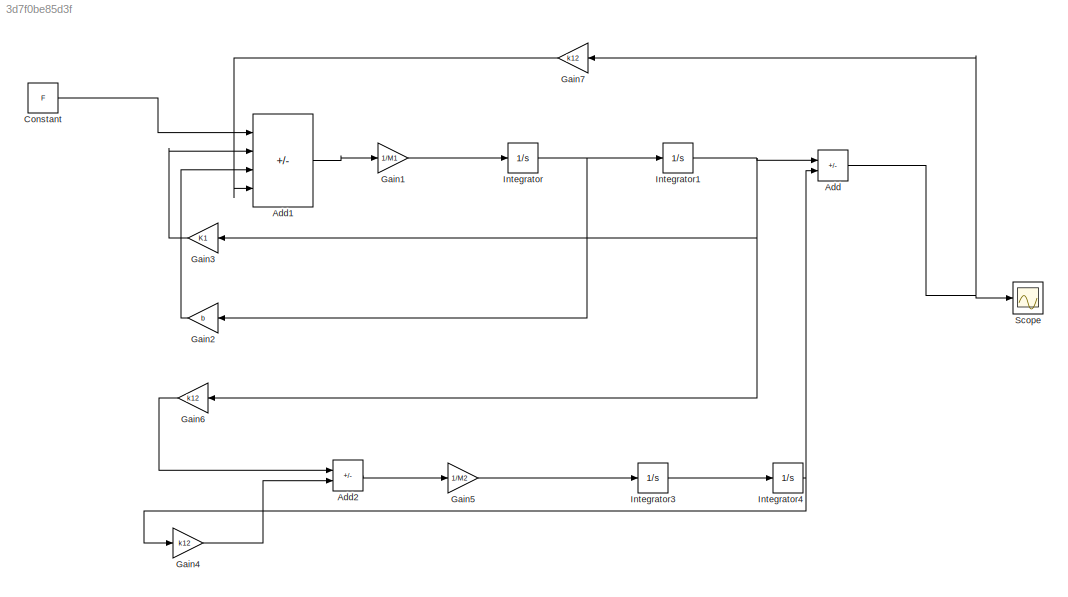
MODEL slx_3d7f0be85d3f
KIND model
CONFIG AbsTol = auto
CONFIG EnableMultiTasking = off
CONFIG FixedStep = auto
CONFIG MaxStep = auto
CONFIG MinStep = auto
CONFIG RelTol = 1e-3
CONFIG SampleTimeConstraint = Unconstrained
CONFIG Solver = VariableStepAuto
CONFIG SolverName = VariableStepAuto
CONFIG StartTime = 0.0
CONFIG StopTime = 10.0
BLOCK [Sum] Add
  IconShape = rectangular
  Inputs = +-
  Ports = [2, 1]
BLOCK [Sum] Add1
  IconShape = rectangular
  Inputs = +---
  Ports = [4, 1]
BLOCK [Sum] Add2
  IconShape = rectangular
  Inputs = +-
  Ports = [2, 1]
BLOCK [Constant] Constant
  Value = F
BLOCK [Gain] Gain1
  Gain = 1/M1
BLOCK [Gain] Gain2
  Gain = b
BLOCK [Gain] Gain3
  Gain = K1
BLOCK [Gain] Gain4
  Gain = k12
BLOCK [Gain] Gain5
  Gain = 1/M2
BLOCK [Gain] Gain6
  Gain = k12
BLOCK [Gain] Gain7
  Gain = k12
BLOCK [Integrator] Integrator
  Ports = [1, 1]
BLOCK [Integrator] Integrator1
  Ports = [1, 1]
BLOCK [Integrator] Integrator3
  Ports = [1, 1]
BLOCK [Integrator] Integrator4
  Ports = [1, 1]
BLOCK [Scope] Scope
  Floating = off
  NumInputPorts = 1
  Ports = [1]
  ScopeSpecificationString = Simulink.scopes.TimeScopeBlockCfg('CurrentConfiguration', extmgr.ConfigurationSet(extmgr.Configuration('Core','General UI',true),extmgr.Configuration('Core','Source UI',true),extmgr.Configuration('Sources','WiredSimulink',true),extmgr.Configuration('Visuals','Time Domain',true,'SerializedDisplays',{struct('MinYLimReal','-0.000041','MaxYLimReal','0.000041','YLabelReal','','MinYLimMag','0.000000','M...<+2305ch>
LINE Add1:1 -> Gain1:1
LINE Add2:1 -> Gain5:1
NET Add:1 -> Gain7:1, Scope:1
LINE Constant:1 -> Add1:1
LINE Gain1:1 -> Integrator:1
LINE Gain2:1 -> Add1:3
LINE Gain3:1 -> Add1:2
LINE Gain4:1 -> Add2:2
LINE Gain5:1 -> Integrator3:1
LINE Gain6:1 -> Add2:1
LINE Gain7:1 -> Add1:4
NET Integrator1:1 -> Add:1, Gain3:1, Gain6:1
LINE Integrator3:1 -> Integrator4:1
NET Integrator4:1 -> Add:2, Gain4:1
NET Integrator:1 -> Gain2:1, Integrator1:1
note: NET lines group one-source signal fan-out (src -> all destinations, sorted); 1:1 wires keep LINE
